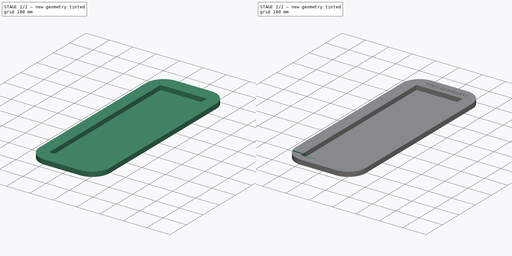
[diagram: build sequence overview — one tinted view per stage of 2, left to right]
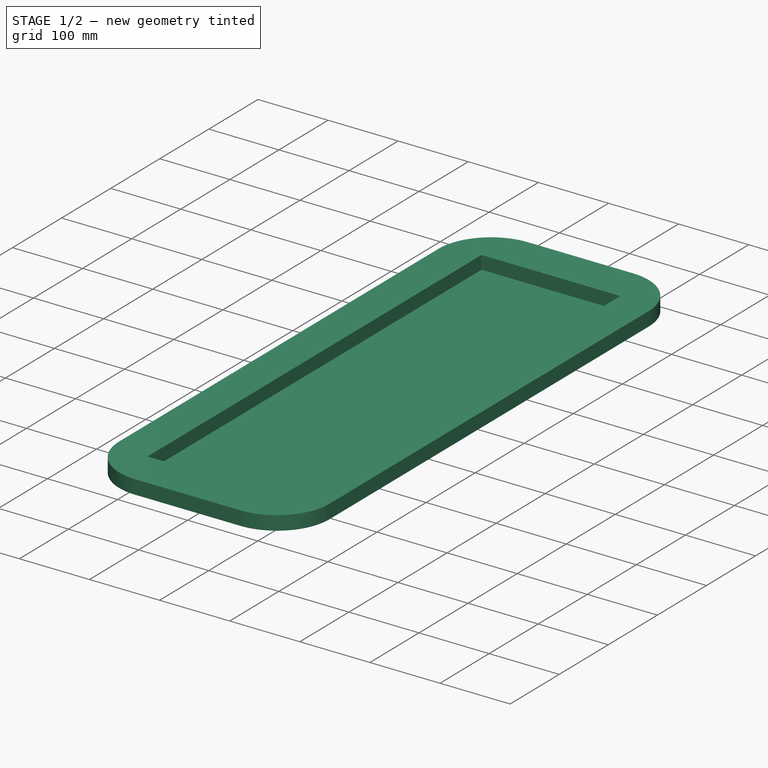
[diagram: stage 1 of 2 — iso view after this stage's code; geometry added in this stage tinted green]
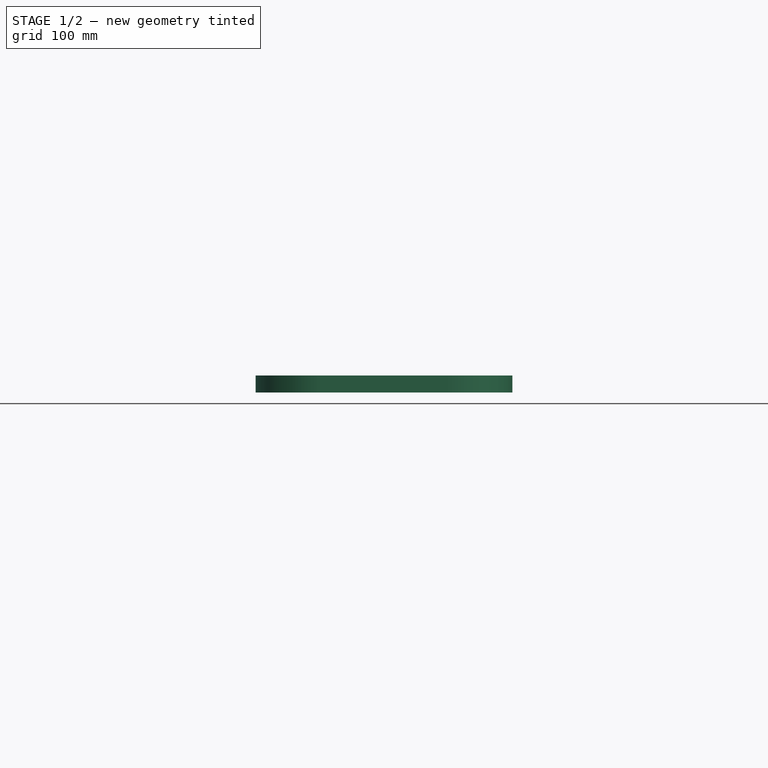
[diagram: stage 1 of 2 — front view after this stage's code; geometry added in this stage tinted green]
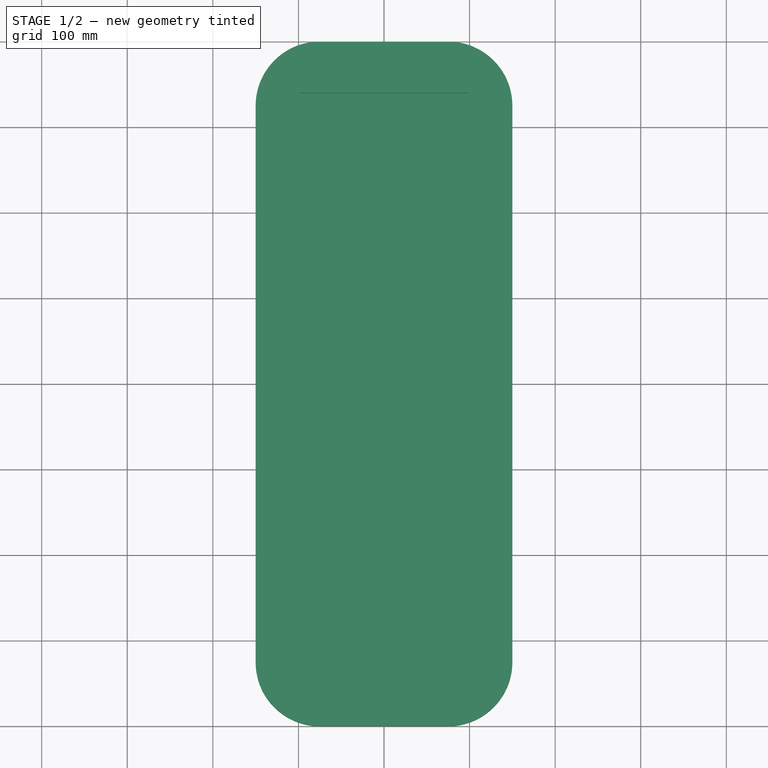
[diagram: stage 1 of 2 — top view after this stage's code; geometry added in this stage tinted green]
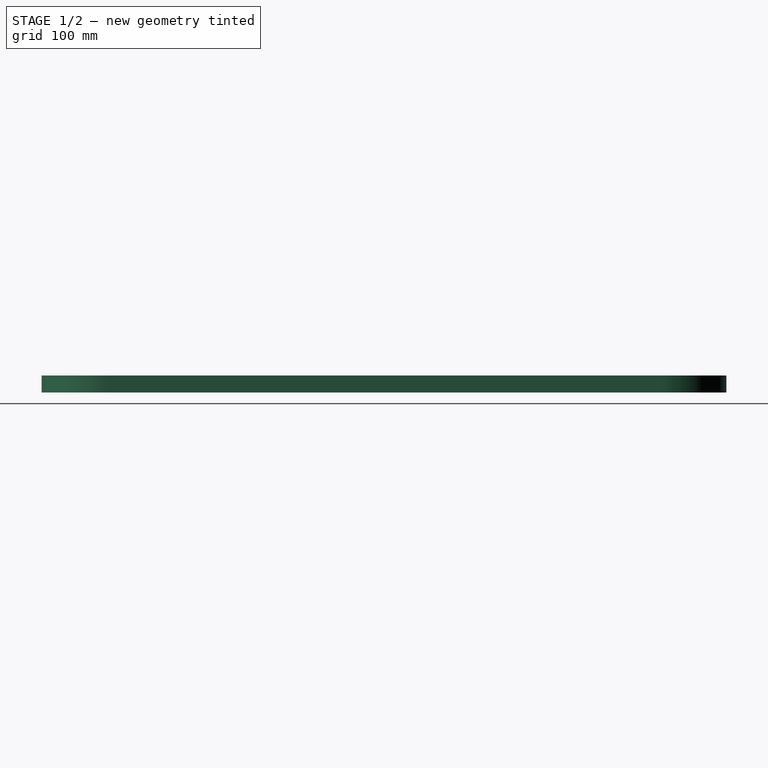
[diagram: stage 1 of 2 — right view after this stage's code; geometry added in this stage tinted green]
FCSTD DOCUMENT  (FreeCAD 1.0R39319 (Git))
Label: Case
License: All rights reserved
LicenseURL: https://en.wikipedia.org/wiki/All_rights_reserved
objects: Sketcher::SketchObject×4, PartDesign::Pocket×3, PartDesign::Pad×1, Part::Part2DObjectPython×1, PartDesign::Body×1
note: 22 computed .brp shape members not serialized (recipe doc carries the construction recipe); baked Part::Feature solids carry a one-line shape summary decoded from their .brp

FEATURE [Sketcher::SketchObject] Sketch
  ArcFitTolerance = 1e-06
  AttachmentSupport = -> [XY_Plane]
  FullyConstrained = false
  MakeInternals = false
  MapMode = 5
  sketch-geometry (22):
    g0: GeomPoint [constr] X=-150 Y=500 Z=0
    g1: GeomPoint [constr] X=150 Y=-400 Z=0
    g2: LineSegment [constr] StartX=-150 StartY=263.083 StartZ=0 EndX=-150 EndY=-263.083 EndZ=0
    g3: LineSegment [constr] StartX=-13.0829 StartY=-400 StartZ=0 EndX=13.0829 EndY=-400 EndZ=0
    g4: LineSegment [constr] StartX=150 StartY=-263.083 StartZ=0 EndX=150 EndY=263.083 EndZ=0
    g5: LineSegment [constr] StartX=13.0829 StartY=400 StartZ=0 EndX=-13.0829 EndY=400 EndZ=0
    g6: ArcOfCircle [constr] CenterX=-13.0829 CenterY=263.083 CenterZ=0 NormalX=0 NormalY=0 NormalZ=1 AngleXU=0 Radius=136.917 StartAngle=1.5708 EndAngle=3.14159
    g7: ArcOfCircle [constr] CenterX=-13.0829 CenterY=-263.083 CenterZ=0 NormalX=0 NormalY=0 NormalZ=1 AngleXU=0 Radius=136.917 StartAngle=3.14159 EndAngle=4.71239
    g8: ArcOfCircle [constr] CenterX=13.0829 CenterY=-263.083 CenterZ=0 NormalX=0 NormalY=0 NormalZ=1 AngleXU=0 Radius=136.917 StartAngle=4.71239 EndAngle=6.28319
    g9: ArcOfCircle [constr] CenterX=13.0829 CenterY=263.083 CenterZ=0 NormalX=0 NormalY=0 NormalZ=1 AngleXU=0 Radius=136.917 StartAngle=0 EndAngle=1.5708
    g10: GeomPoint [constr] X=-150 Y=400 Z=0
    g11: GeomPoint [constr] X=150 Y=-400 Z=0
    g12: LineSegment StartX=-150 StartY=325 StartZ=0 EndX=-150 EndY=-325 EndZ=0
    g13: LineSegment StartX=-75 StartY=-400 StartZ=0 EndX=75 EndY=-400 EndZ=0
    g14: LineSegment StartX=150 StartY=-325 StartZ=0 EndX=150 EndY=325 EndZ=0
    g15: LineSegment StartX=75 StartY=400 StartZ=0 EndX=-75 EndY=400 EndZ=0
    g16: ArcOfCircle CenterX=-75 CenterY=325 CenterZ=0 NormalX=0 NormalY=0 NormalZ=1 AngleXU=0 Radius=75 StartAngle=1.5708 EndAngle=3.14159
    g17: ArcOfCircle CenterX=-75 CenterY=-325 CenterZ=0 NormalX=0 NormalY=0 NormalZ=1 AngleXU=0 Radius=75 StartAngle=3.14159 EndAngle=4.71239
    g18: ArcOfCircle CenterX=75 CenterY=-325 CenterZ=0 NormalX=0 NormalY=0 NormalZ=1 AngleXU=0 Radius=75 StartAngle=4.71239 EndAngle=6.28319
    g19: ArcOfCircle CenterX=75 CenterY=325 CenterZ=0 NormalX=0 NormalY=0 NormalZ=1 AngleXU=0 Radius=75 StartAngle=0 EndAngle=1.5708
    g20: GeomPoint [constr] X=-150 Y=400 Z=0
    g21: GeomPoint [constr] X=150 Y=-400 Z=0
  constraints (46):
    c: Tangent(g2,g6) = -1.5708
    c: Tangent(g2,g7) = -1.5708
    c: Tangent(g3,g7) = -1.5708
    c: Tangent(g3,g8) = -1.5708
    c: Tangent(g4,g8) = -1.5708
    c: Tangent(g4,g9) = -1.5708
    c: Tangent(g5,g9) = -1.5708
    c: Tangent(g5,g6) = -1.5708
    c: Vertical(g2)
    c: Vertical(g4)
    c: Horizontal(g3)
    c: Horizontal(g5)
    c: Equal(g6,g7)
    c: Equal(g7,g8)
    c: Equal(g8,g9)
    c: PointOnObject(g10,g2)
    c: PointOnObject(g10,g5)
    c: PointOnObject(g11,g3)
    c: PointOnObject(g11,g4)
    c: Coincident(g11,g1)
    c: Tangent(g12,g16) = -1.5708
    c: Tangent(g12,g17) = -1.5708
    c: Tangent(g13,g17) = -1.5708
    c: Tangent(g13,g18) = -1.5708
    c: Tangent(g14,g18) = -1.5708
    c: Tangent(g14,g19) = -1.5708
    c: Tangent(g15,g19) = -1.5708
    c: Tangent(g15,g16) = -1.5708
    c: Vertical(g12)
    c: Vertical(g14)
    c: Horizontal(g13)
    c: Horizontal(g15)
    c: Equal(g16,g17)
    c: Equal(g17,g18)
    c: Equal(g18,g19)
    c: PointOnObject(g20,g12)
    c: PointOnObject(g20,g15)
    c: PointOnObject(g21,g13)
    c: PointOnObject(g21,g14)
    c: Coincident(g20,g10)
    c: Coincident(g21,g1)
    c: Distance(g-2,g12) = 150
    c: Distance(g14,g-2) = 150
    c: Distance(g-1,g15) = 400
    c: Distance(g-1,g13) = 400
    c: DistanceX(g15,g15) = 150
FEATURE [PartDesign::Pad] Pad
  Direction = (0,0,1)
  Length = 20
  Length2 = 10
  Profile = -> Sketch
  ReferenceAxis = -> Sketch [N_Axis]
  Refine = true
  Suppressed = false
  Type = 0
  UseCustomVector = true
FEATURE [Sketcher::SketchObject] Sketch003
  ArcFitTolerance = 1e-06
  AttachmentSupport = -> [Pad]
  FullyConstrained = true
  MakeInternals = false
  MapMode = 5
  Placement = pos=(0,0,20) rot=(0,0,1;0rad)
  sketch-geometry (5):
    g0: LineSegment StartX=-99 StartY=-340 StartZ=0 EndX=99 EndY=-340 EndZ=0
    g1: LineSegment StartX=99 StartY=-340 StartZ=0 EndX=99 EndY=340 EndZ=0
    g2: LineSegment StartX=99 StartY=340 StartZ=0 EndX=-99 EndY=340 EndZ=0
    g3: LineSegment StartX=-99 StartY=340 StartZ=0 EndX=-99 EndY=-340 EndZ=0
    g4: GeomPoint [constr] X=0 Y=0 Z=0
  constraints (12):
    c: Coincident(g0,g1)
    c: Coincident(g1,g2)
    c: Coincident(g2,g3)
    c: Coincident(g3,g0)
    c: Horizontal(g0)
    c: Horizontal(g2)
    c: Vertical(g1)
    c: Vertical(g3)
    c: Symmetric(g2,g0,g4)
    c: Coincident(g4,g-1)
    c: Distance(g0,g2) = 680
    c: Distance(g1,g-2) = 99
FEATURE [PartDesign::Pocket] Pocket
  BaseFeature = -> Pad
  Direction = (0,0,-1)
  Length = 19
  Length2 = 5
  Profile = -> Sketch003
  ReferenceAxis = -> Sketch003 [N_Axis]
  Refine = true
  Suppressed = false
  Type = 0
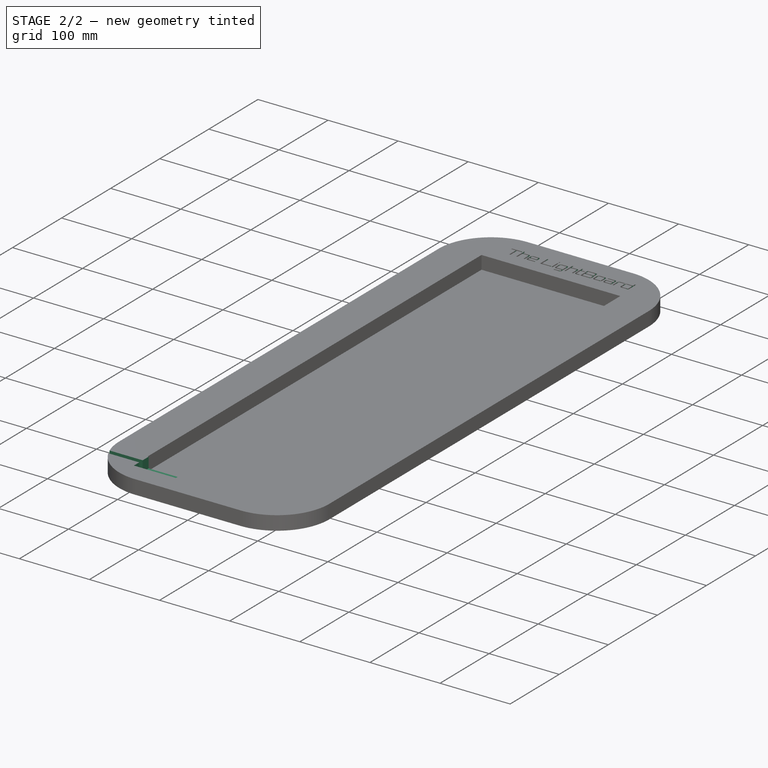
[diagram: stage 2 of 2 — iso view after this stage's code; geometry added in this stage tinted green]
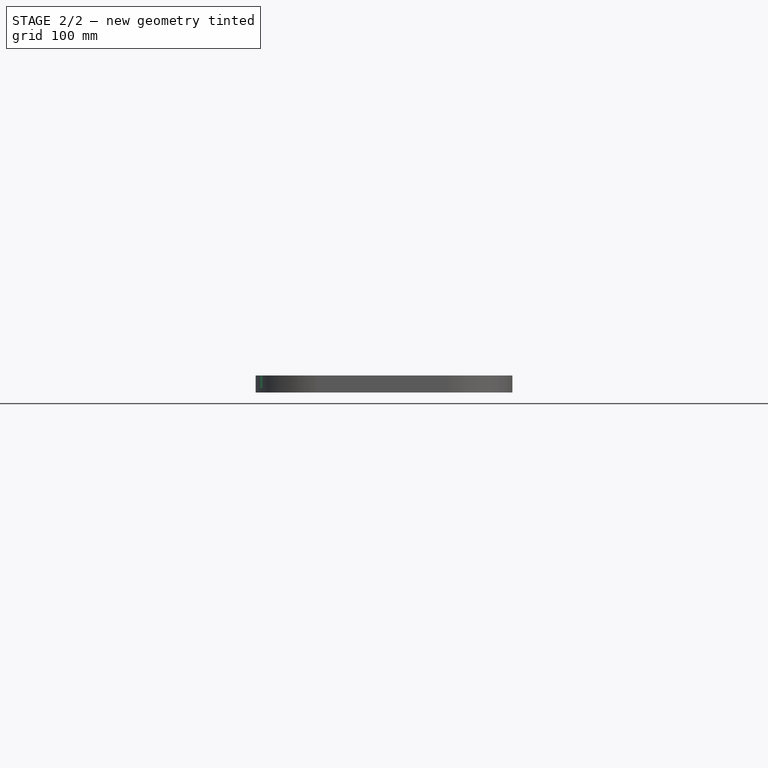
[diagram: stage 2 of 2 — front view after this stage's code; geometry added in this stage tinted green]
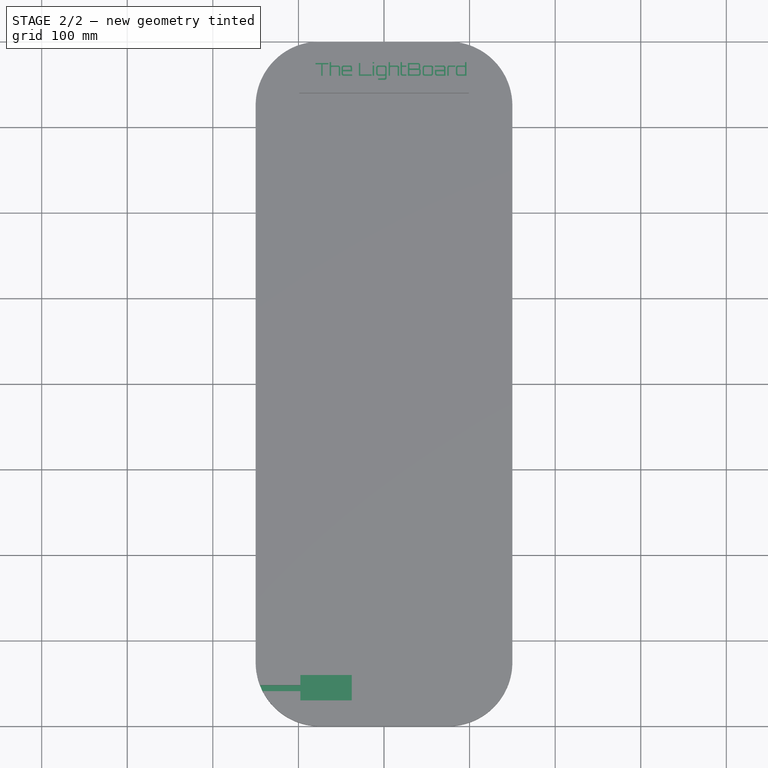
[diagram: stage 2 of 2 — top view after this stage's code; geometry added in this stage tinted green]
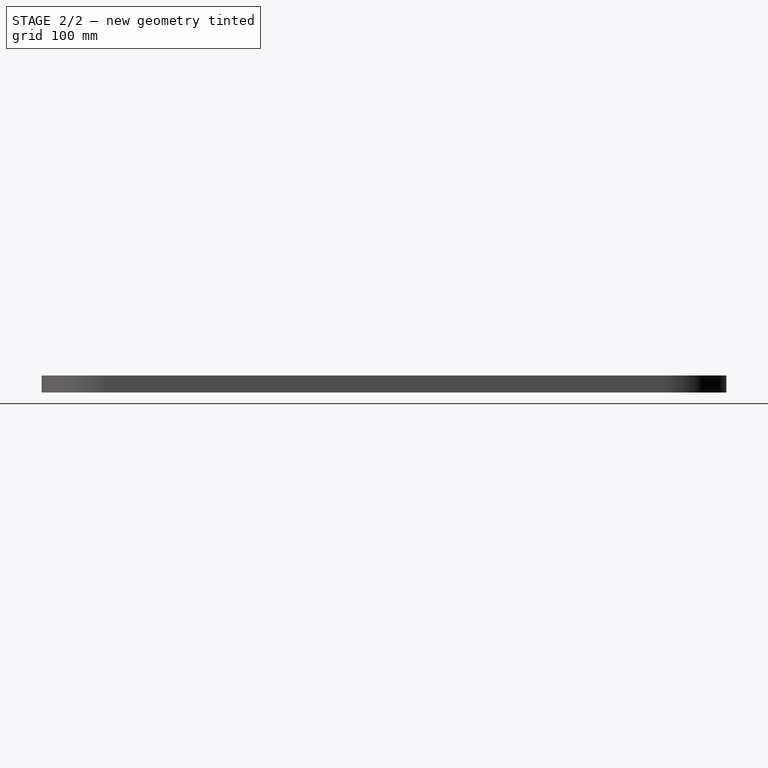
[diagram: stage 2 of 2 — right view after this stage's code; geometry added in this stage tinted green]
FEATURE [Part::Part2DObjectPython] ShapeString  # Draft 2D object (typed FeaturePython)
  AttachmentSupport = -> [Pocket]
  FontFile = <userpath>/Documents/work-sign/CAD/Orbitron-VariableFont_wght.ttf
  Fuse = false
  Justification = 6
  JustificationReference = 0
  KeepLeftMargin = false
  MakeFace = true
  ObliqueAngle = 0
  Placement = pos=(-80,360,20) rot=(0,0,1;0rad)
  ScaleToSize = true
  Size = 15
  String = The LightBoard
  Tracking = 0
FEATURE [Sketcher::SketchObject] Sketch004
  ArcFitTolerance = 1e-06
  FullyConstrained = false
  MakeInternals = false
  Placement = pos=(0,0,20) rot=(0,0,1;0rad)
  sketch-geometry (256):
    g0: LineSegment StartX=-73.3328 StartY=360 StartZ=0 EndX=-73.3328 EndY=373.313 EndZ=0
    g1: LineSegment StartX=-71.6455 StartY=360 StartZ=0 EndX=-73.3328 EndY=360 EndZ=0
    g2: LineSegment StartX=-71.6455 StartY=373.313 StartZ=0 EndX=-71.6455 EndY=360 EndZ=0
    g3: LineSegment StartX=-64.9993 StartY=373.313 StartZ=0 EndX=-71.6455 EndY=373.313 EndZ=0
    g4: LineSegment StartX=-64.9993 StartY=375 StartZ=0 EndX=-64.9993 EndY=373.313 EndZ=0
    g5: LineSegment StartX=-80 StartY=375 StartZ=0 EndX=-64.9993 EndY=375 EndZ=0
    g6: LineSegment StartX=-80 StartY=373.313 StartZ=0 EndX=-80 EndY=375 EndZ=0
    g7: LineSegment StartX=-73.3328 StartY=373.313 StartZ=0 EndX=-80 EndY=373.313 EndZ=0
    g8: LineSegment StartX=-63.4924 StartY=360 StartZ=0 EndX=-63.4924 EndY=376.042 EndZ=0
    g9: LineSegment StartX=-61.7841 StartY=360 StartZ=0 EndX=-63.4924 EndY=360 EndZ=0
    g10: LineSegment StartX=-61.7841 StartY=369.562 StartZ=0 EndX=-61.7841 EndY=360 EndZ=0
    g11: BSplineCurve PolesCount=3 KnotsCount=2 Degree=2 IsPeriodic=0
    g12: BSplineCurve PolesCount=3 KnotsCount=2 Degree=2 IsPeriodic=0
    g13: LineSegment StartX=-53.7008 StartY=370.375 StartZ=0 EndX=-60.9506 EndY=370.375 EndZ=0
    g14: BSplineCurve PolesCount=3 KnotsCount=2 Degree=2 IsPeriodic=0
    g15: BSplineCurve PolesCount=3 KnotsCount=2 Degree=2 IsPeriodic=0
    g16: LineSegment StartX=-52.8884 StartY=360 StartZ=0 EndX=-52.8884 EndY=369.562 EndZ=0
    g17: LineSegment StartX=-51.18 StartY=360 StartZ=0 EndX=-52.8884 EndY=360 EndZ=0
    g18: LineSegment StartX=-51.18 StartY=369.562 StartZ=0 EndX=-51.18 EndY=360 EndZ=0
    g19: BSplineCurve PolesCount=3 KnotsCount=2 Degree=2 IsPeriodic=0
    g20: BSplineCurve PolesCount=3 KnotsCount=2 Degree=2 IsPeriodic=0
    g21: BSplineCurve PolesCount=3 KnotsCount=2 Degree=2 IsPeriodic=0
    g22: LineSegment StartX=-61.7841 StartY=372.084 StartZ=0 EndX=-53.7008 EndY=372.084 EndZ=0
    g23: LineSegment StartX=-61.7841 StartY=376.042 StartZ=0 EndX=-61.7841 EndY=372.084 EndZ=0
    g24: LineSegment StartX=-63.4924 StartY=376.042 StartZ=0 EndX=-61.7841 EndY=376.042 EndZ=0
    g25: BSplineCurve PolesCount=3 KnotsCount=2 Degree=2 IsPeriodic=0
    g26: LineSegment StartX=-37.3099 StartY=360 StartZ=0 EndX=-47.1015 EndY=360 EndZ=0
    g27: LineSegment StartX=-37.3099 StartY=361.708 StartZ=0 EndX=-37.3099 EndY=360 EndZ=0
    g28: LineSegment StartX=-47.1015 StartY=361.708 StartZ=0 EndX=-37.3099 EndY=361.708 EndZ=0
    g29: BSplineCurve PolesCount=3 KnotsCount=2 Degree=2 IsPeriodic=0
    g30: BSplineCurve PolesCount=3 KnotsCount=2 Degree=2 IsPeriodic=0
    g31: LineSegment StartX=-47.9139 StartY=365.187 StartZ=0 EndX=-47.9139 EndY=362.521 EndZ=0
    g32: LineSegment StartX=-37.3099 StartY=365.187 StartZ=0 EndX=-47.9139 EndY=365.187 EndZ=0
    g33: LineSegment StartX=-37.3099 StartY=369.562 StartZ=0 EndX=-37.3099 EndY=365.187 EndZ=0
    g34: BSplineCurve PolesCount=3 KnotsCount=2 Degree=2 IsPeriodic=0
    g35: BSplineCurve PolesCount=3 KnotsCount=2 Degree=2 IsPeriodic=0
    g36: BSplineCurve PolesCount=3 KnotsCount=2 Degree=2 IsPeriodic=0
    g37: LineSegment StartX=-47.1015 StartY=372.084 StartZ=0 EndX=-39.8517 EndY=372.084 EndZ=0
    g38: BSplineCurve PolesCount=3 KnotsCount=2 Degree=2 IsPeriodic=0
    g39: BSplineCurve PolesCount=3 KnotsCount=2 Degree=2 IsPeriodic=0
    g40: BSplineCurve PolesCount=3 KnotsCount=2 Degree=2 IsPeriodic=0
    g41: LineSegment StartX=-49.6223 StartY=362.521 StartZ=0 EndX=-49.6223 EndY=369.562 EndZ=0
    g42: BSplineCurve PolesCount=3 KnotsCount=2 Degree=2 IsPeriodic=0
    g43: BSplineCurve PolesCount=3 KnotsCount=2 Degree=2 IsPeriodic=0
    g44: LineSegment StartX=-47.9139 StartY=366.896 StartZ=0 EndX=-39.0392 EndY=366.896 EndZ=0
    g45: LineSegment StartX=-47.9139 StartY=369.562 StartZ=0 EndX=-47.9139 EndY=366.896 EndZ=0
    g46: BSplineCurve PolesCount=3 KnotsCount=2 Degree=2 IsPeriodic=0
    g47: BSplineCurve PolesCount=3 KnotsCount=2 Degree=2 IsPeriodic=0
    g48: LineSegment StartX=-39.8517 StartY=370.375 StartZ=0 EndX=-47.1015 EndY=370.375 EndZ=0
    g49: BSplineCurve PolesCount=3 KnotsCount=2 Degree=2 IsPeriodic=0
    g50: BSplineCurve PolesCount=3 KnotsCount=2 Degree=2 IsPeriodic=0
    g51: LineSegment StartX=-39.0392 StartY=366.896 StartZ=0 EndX=-39.0392 EndY=369.562 EndZ=0
    g52: LineSegment StartX=-29.4016 StartY=360 StartZ=0 EndX=-29.4016 EndY=375.021 EndZ=0
    g53: LineSegment StartX=-14.4016 StartY=360 StartZ=0 EndX=-29.4016 EndY=360 EndZ=0
    g54: LineSegment StartX=-14.4016 StartY=361.687 StartZ=0 EndX=-14.4016 EndY=360 EndZ=0
    g55: LineSegment StartX=-27.7143 StartY=361.687 StartZ=0 EndX=-14.4016 EndY=361.687 EndZ=0
    g56: LineSegment StartX=-27.7143 StartY=375.021 StartZ=0 EndX=-27.7143 EndY=361.687 EndZ=0
    g57: LineSegment StartX=-29.4016 StartY=375.021 StartZ=0 EndX=-27.7143 EndY=375.021 EndZ=0
    g58: LineSegment StartX=-13.2731 StartY=360 StartZ=0 EndX=-13.2731 EndY=372.084 EndZ=0
    g59: LineSegment StartX=-11.5648 StartY=360 StartZ=0 EndX=-13.2731 EndY=360 EndZ=0
    g60: LineSegment StartX=-11.5648 StartY=372.084 StartZ=0 EndX=-11.5648 EndY=360 EndZ=0
    g61: LineSegment StartX=-13.2731 StartY=372.084 StartZ=0 EndX=-11.5648 EndY=372.084 EndZ=0
    g62: LineSegment StartX=-13.2731 StartY=374.333 StartZ=0 EndX=-13.2731 EndY=376.042 EndZ=0
    g63: LineSegment StartX=-11.5648 StartY=374.333 StartZ=0 EndX=-13.2731 EndY=374.333 EndZ=0
    g64: LineSegment StartX=-11.5648 StartY=376.042 StartZ=0 EndX=-11.5648 EndY=374.333 EndZ=0
    g65: LineSegment StartX=-13.2731 StartY=376.042 StartZ=0 EndX=-11.5648 EndY=376.042 EndZ=0
    g66: LineSegment StartX=-6.93214 StartY=355.229 StartZ=0 EndX=-6.93214 EndY=356.958 EndZ=0
    g67: LineSegment StartX=0.609232 StartY=355.229 StartZ=0 EndX=-6.93214 EndY=355.229 EndZ=0
    g68: BSplineCurve PolesCount=3 KnotsCount=2 Degree=2 IsPeriodic=0
    g69: BSplineCurve PolesCount=3 KnotsCount=2 Degree=2 IsPeriodic=0
    g70: BSplineCurve PolesCount=3 KnotsCount=2 Degree=2 IsPeriodic=0
    g71: LineSegment StartX=3.13003 StartY=369.562 StartZ=0 EndX=3.13003 EndY=357.771 EndZ=0
    g72: BSplineCurve PolesCount=3 KnotsCount=2 Degree=2 IsPeriodic=0
    g73: BSplineCurve PolesCount=3 KnotsCount=2 Degree=2 IsPeriodic=0
    g74: BSplineCurve PolesCount=3 KnotsCount=2 Degree=2 IsPeriodic=0
    g75: LineSegment StartX=-6.64052 StartY=372.084 StartZ=0 EndX=0.609232 EndY=372.084 EndZ=0
    g76: BSplineCurve PolesCount=3 KnotsCount=2 Degree=2 IsPeriodic=0
    g77: BSplineCurve PolesCount=3 KnotsCount=2 Degree=2 IsPeriodic=0
    g78: BSplineCurve PolesCount=3 KnotsCount=2 Degree=2 IsPeriodic=0
    g79: LineSegment StartX=-9.16132 StartY=362.521 StartZ=0 EndX=-9.16132 EndY=369.562 EndZ=0
    g80: BSplineCurve PolesCount=3 KnotsCount=2 Degree=2 IsPeriodic=0
    g81: BSplineCurve PolesCount=3 KnotsCount=2 Degree=2 IsPeriodic=0
    g82: BSplineCurve PolesCount=3 KnotsCount=2 Degree=2 IsPeriodic=0
    g83: LineSegment StartX=1.42169 StartY=360 StartZ=0 EndX=-6.64052 EndY=360 EndZ=0
    g84: LineSegment StartX=1.42169 StartY=357.771 StartZ=0 EndX=1.42169 EndY=360 EndZ=0
    g85: BSplineCurve PolesCount=3 KnotsCount=2 Degree=2 IsPeriodic=0
    g86: BSplineCurve PolesCount=3 KnotsCount=2 Degree=2 IsPeriodic=0
    g87: LineSegment StartX=-6.93214 StartY=356.958 StartZ=0 EndX=0.609232 EndY=356.958 EndZ=0
    g88: LineSegment StartX=-6.64052 StartY=361.708 StartZ=0 EndX=0.609232 EndY=361.708 EndZ=0
    g89: BSplineCurve PolesCount=3 KnotsCount=2 Degree=2 IsPeriodic=0
    g90: BSplineCurve PolesCount=3 KnotsCount=2 Degree=2 IsPeriodic=0
    g91: LineSegment StartX=-7.45298 StartY=369.562 StartZ=0 EndX=-7.45298 EndY=362.521 EndZ=0
    g92: BSplineCurve PolesCount=3 KnotsCount=2 Degree=2 IsPeriodic=0
    g93: BSplineCurve PolesCount=3 KnotsCount=2 Degree=2 IsPeriodic=0
    g94: LineSegment StartX=0.609232 StartY=370.375 StartZ=0 EndX=-6.64052 EndY=370.375 EndZ=0
    g95: BSplineCurve PolesCount=3 KnotsCount=2 Degree=2 IsPeriodic=0
    g96: BSplineCurve PolesCount=3 KnotsCount=2 Degree=2 IsPeriodic=0
    g97: LineSegment StartX=1.42169 StartY=362.521 StartZ=0 EndX=1.42169 EndY=369.562 EndZ=0
    g98: BSplineCurve PolesCount=3 KnotsCount=2 Degree=2 IsPeriodic=0
    g99: BSplineCurve PolesCount=3 KnotsCount=2 Degree=2 IsPeriodic=0
    g100: LineSegment StartX=5.34565 StartY=360 StartZ=0 EndX=5.34565 EndY=376.042 EndZ=0
    g101: LineSegment StartX=7.05398 StartY=360 StartZ=0 EndX=5.34565 EndY=360 EndZ=0
    g102: LineSegment StartX=7.05398 StartY=369.562 StartZ=0 EndX=7.05398 EndY=360 EndZ=0
    g103: BSplineCurve PolesCount=3 KnotsCount=2 Degree=2 IsPeriodic=0
    g104: BSplineCurve PolesCount=3 KnotsCount=2 Degree=2 IsPeriodic=0
    g105: LineSegment StartX=15.1372 StartY=370.375 StartZ=0 EndX=7.88747 EndY=370.375 EndZ=0
    g106: BSplineCurve PolesCount=3 KnotsCount=2 Degree=2 IsPeriodic=0
    g107: BSplineCurve PolesCount=3 KnotsCount=2 Degree=2 IsPeriodic=0
    g108: LineSegment StartX=15.9497 StartY=360 StartZ=0 EndX=15.9497 EndY=369.562 EndZ=0
    g109: LineSegment StartX=17.658 StartY=360 StartZ=0 EndX=15.9497 EndY=360 EndZ=0
    g110: LineSegment StartX=17.658 StartY=369.562 StartZ=0 EndX=17.658 EndY=360 EndZ=0
    g111: BSplineCurve PolesCount=3 KnotsCount=2 Degree=2 IsPeriodic=0
    g112: BSplineCurve PolesCount=3 KnotsCount=2 Degree=2 IsPeriodic=0
    g113: BSplineCurve PolesCount=3 KnotsCount=2 Degree=2 IsPeriodic=0
    g114: LineSegment StartX=7.05398 StartY=372.084 StartZ=0 EndX=15.1372 EndY=372.084 EndZ=0
    g115: LineSegment StartX=7.05398 StartY=376.042 StartZ=0 EndX=7.05398 EndY=372.084 EndZ=0
    g116: LineSegment StartX=5.34565 StartY=376.042 StartZ=0 EndX=7.05398 EndY=376.042 EndZ=0
    g117: BSplineCurve PolesCount=3 KnotsCount=2 Degree=2 IsPeriodic=0
    g118: LineSegment StartX=26.195 StartY=360 StartZ=0 EndX=21.778 EndY=360 EndZ=0
    g119: LineSegment StartX=26.195 StartY=361.708 StartZ=0 EndX=26.195 EndY=360 EndZ=0
    g120: LineSegment StartX=21.778 StartY=361.708 StartZ=0 EndX=26.195 EndY=361.708 EndZ=0
    g121: BSplineCurve PolesCount=3 KnotsCount=2 Degree=2 IsPeriodic=0
    g122: BSplineCurve PolesCount=3 KnotsCount=2 Degree=2 IsPeriodic=0
    g123: LineSegment StartX=20.9655 StartY=370.375 StartZ=0 EndX=20.9655 EndY=362.521 EndZ=0
    g124: LineSegment StartX=26.195 StartY=370.375 StartZ=0 EndX=20.9655 EndY=370.375 EndZ=0
    g125: LineSegment StartX=26.195 StartY=372.084 StartZ=0 EndX=26.195 EndY=370.375 EndZ=0
    g126: LineSegment StartX=20.9655 StartY=372.084 StartZ=0 EndX=26.195 EndY=372.084 EndZ=0
    g127: LineSegment StartX=20.9655 StartY=376.042 StartZ=0 EndX=20.9655 EndY=372.084 EndZ=0
    g128: LineSegment StartX=19.2572 StartY=376.042 StartZ=0 EndX=20.9655 EndY=376.042 EndZ=0
    g129: LineSegment StartX=19.2572 StartY=362.521 StartZ=0 EndX=19.2572 EndY=376.042 EndZ=0
    g130: BSplineCurve PolesCount=3 KnotsCount=2 Degree=2 IsPeriodic=0
    g131: BSplineCurve PolesCount=3 KnotsCount=2 Degree=2 IsPeriodic=0
    g132: LineSegment StartX=27.9325 StartY=360 StartZ=0 EndX=27.9325 EndY=375 EndZ=0
    g133: LineSegment StartX=40.4327 StartY=360 StartZ=0 EndX=27.9325 EndY=360 EndZ=0
    g134: BSplineCurve PolesCount=3 KnotsCount=2 Degree=2 IsPeriodic=0
    g135: BSplineCurve PolesCount=3 KnotsCount=2 Degree=2 IsPeriodic=0
    g136: BSplineCurve PolesCount=3 KnotsCount=2 Degree=2 IsPeriodic=0
    g137: LineSegment StartX=42.9331 StartY=366 StartZ=0 EndX=42.9331 EndY=362.5 EndZ=0
    g138: BSplineCurve PolesCount=3 KnotsCount=2 Degree=2 IsPeriodic=0
    g139: BSplineCurve PolesCount=3 KnotsCount=2 Degree=2 IsPeriodic=0
    g140: BSplineCurve PolesCount=3 KnotsCount=2 Degree=2 IsPeriodic=0
    g141: BSplineCurve PolesCount=3 KnotsCount=2 Degree=2 IsPeriodic=0
    g142: LineSegment StartX=42.2875 StartY=372.5 StartZ=0 EndX=42.2875 EndY=369.313 EndZ=0
    g143: BSplineCurve PolesCount=3 KnotsCount=2 Degree=2 IsPeriodic=0
    g144: BSplineCurve PolesCount=3 KnotsCount=2 Degree=2 IsPeriodic=0
    g145: BSplineCurve PolesCount=3 KnotsCount=2 Degree=2 IsPeriodic=0
    g146: LineSegment StartX=27.9325 StartY=375 StartZ=0 EndX=39.7871 EndY=375 EndZ=0
    g147: LineSegment StartX=30.4329 StartY=361.687 StartZ=0 EndX=40.4327 EndY=361.687 EndZ=0
    g148: BSplineCurve PolesCount=3 KnotsCount=2 Degree=2 IsPeriodic=0
    g149: BSplineCurve PolesCount=3 KnotsCount=2 Degree=2 IsPeriodic=0
    g150: LineSegment StartX=29.6204 StartY=366 StartZ=0 EndX=29.6204 EndY=362.5 EndZ=0
    g151: BSplineCurve PolesCount=3 KnotsCount=2 Degree=2 IsPeriodic=0
    g152: BSplineCurve PolesCount=3 KnotsCount=2 Degree=2 IsPeriodic=0
    g153: LineSegment StartX=40.4327 StartY=366.812 StartZ=0 EndX=30.4329 EndY=366.812 EndZ=0
    g154: BSplineCurve PolesCount=3 KnotsCount=2 Degree=2 IsPeriodic=0
    g155: BSplineCurve PolesCount=3 KnotsCount=2 Degree=2 IsPeriodic=0
    g156: LineSegment StartX=41.2458 StartY=362.5 StartZ=0 EndX=41.2458 EndY=366 EndZ=0
    g157: BSplineCurve PolesCount=3 KnotsCount=2 Degree=2 IsPeriodic=0
    g158: BSplineCurve PolesCount=3 KnotsCount=2 Degree=2 IsPeriodic=0
    g159: LineSegment StartX=30.4329 StartY=368.5 StartZ=0 EndX=39.7871 EndY=368.5 EndZ=0
    g160: BSplineCurve PolesCount=3 KnotsCount=2 Degree=2 IsPeriodic=0
    g161: BSplineCurve PolesCount=3 KnotsCount=2 Degree=2 IsPeriodic=0
    g162: LineSegment StartX=29.6204 StartY=372.5 StartZ=0 EndX=29.6204 EndY=369.313 EndZ=0
    g163: BSplineCurve PolesCount=3 KnotsCount=2 Degree=2 IsPeriodic=0
    g164: BSplineCurve PolesCount=3 KnotsCount=2 Degree=2 IsPeriodic=0
    g165: LineSegment StartX=39.7871 StartY=373.313 StartZ=0 EndX=30.4329 EndY=373.313 EndZ=0
    g166: BSplineCurve PolesCount=3 KnotsCount=2 Degree=2 IsPeriodic=0
    g167: BSplineCurve PolesCount=3 KnotsCount=2 Degree=2 IsPeriodic=0
    g168: LineSegment StartX=40.5792 StartY=369.313 StartZ=0 EndX=40.5792 EndY=372.5 EndZ=0
    g169: BSplineCurve PolesCount=3 KnotsCount=2 Degree=2 IsPeriodic=0
    g170: BSplineCurve PolesCount=3 KnotsCount=2 Degree=2 IsPeriodic=0
    g171: BSplineCurve PolesCount=3 KnotsCount=2 Degree=2 IsPeriodic=0
    g172: LineSegment StartX=54.8549 StartY=360 StartZ=0 EndX=47.6051 EndY=360 EndZ=0
    g173: BSplineCurve PolesCount=3 KnotsCount=2 Degree=2 IsPeriodic=0
    g174: BSplineCurve PolesCount=3 KnotsCount=2 Degree=2 IsPeriodic=0
    g175: BSplineCurve PolesCount=3 KnotsCount=2 Degree=2 IsPeriodic=0
    g176: LineSegment StartX=57.3967 StartY=369.562 StartZ=0 EndX=57.3967 EndY=362.521 EndZ=0
    g177: BSplineCurve PolesCount=3 KnotsCount=2 Degree=2 IsPeriodic=0
    g178: BSplineCurve PolesCount=3 KnotsCount=2 Degree=2 IsPeriodic=0
    g179: BSplineCurve PolesCount=3 KnotsCount=2 Degree=2 IsPeriodic=0
    g180: LineSegment StartX=47.6051 StartY=372.084 StartZ=0 EndX=54.8549 EndY=372.084 EndZ=0
    g181: BSplineCurve PolesCount=3 KnotsCount=2 Degree=2 IsPeriodic=0
    g182: BSplineCurve PolesCount=3 KnotsCount=2 Degree=2 IsPeriodic=0
    g183: BSplineCurve PolesCount=3 KnotsCount=2 Degree=2 IsPeriodic=0
    g184: LineSegment StartX=45.0843 StartY=362.521 StartZ=0 EndX=45.0843 EndY=369.562 EndZ=0
    g185: BSplineCurve PolesCount=3 KnotsCount=2 Degree=2 IsPeriodic=0
    g186: BSplineCurve PolesCount=3 KnotsCount=2 Degree=2 IsPeriodic=0
    g187: LineSegment StartX=47.6051 StartY=361.708 StartZ=0 EndX=54.8549 EndY=361.708 EndZ=0
    g188: BSplineCurve PolesCount=3 KnotsCount=2 Degree=2 IsPeriodic=0
    g189: BSplineCurve PolesCount=3 KnotsCount=2 Degree=2 IsPeriodic=0
    g190: LineSegment StartX=46.7927 StartY=369.562 StartZ=0 EndX=46.7927 EndY=362.521 EndZ=0
    g191: BSplineCurve PolesCount=3 KnotsCount=2 Degree=2 IsPeriodic=0
    g192: BSplineCurve PolesCount=3 KnotsCount=2 Degree=2 IsPeriodic=0
    g193: LineSegment StartX=54.8549 StartY=370.375 StartZ=0 EndX=47.6051 EndY=370.375 EndZ=0
    g194: BSplineCurve PolesCount=3 KnotsCount=2 Degree=2 IsPeriodic=0
    g195: BSplineCurve PolesCount=3 KnotsCount=2 Degree=2 IsPeriodic=0
    g196: LineSegment StartX=55.6673 StartY=362.521 StartZ=0 EndX=55.6673 EndY=369.562 EndZ=0
    g197: BSplineCurve PolesCount=3 KnotsCount=2 Degree=2 IsPeriodic=0
    g198: BSplineCurve PolesCount=3 KnotsCount=2 Degree=2 IsPeriodic=0
    g199: BSplineCurve PolesCount=3 KnotsCount=2 Degree=2 IsPeriodic=0
    g200: LineSegment StartX=71.8277 StartY=360 StartZ=0 EndX=62.0361 EndY=360 EndZ=0
    g201: LineSegment StartX=71.8277 StartY=369.562 StartZ=0 EndX=71.8277 EndY=360 EndZ=0
    g202: BSplineCurve PolesCount=3 KnotsCount=2 Degree=2 IsPeriodic=0
    g203: BSplineCurve PolesCount=3 KnotsCount=2 Degree=2 IsPeriodic=0
    g204: BSplineCurve PolesCount=3 KnotsCount=2 Degree=2 IsPeriodic=0
    g205: LineSegment StartX=59.5146 StartY=372.084 StartZ=0 EndX=69.2859 EndY=372.084 EndZ=0
    g206: LineSegment StartX=59.5146 StartY=370.375 StartZ=0 EndX=59.5146 EndY=372.084 EndZ=0
    g207: LineSegment StartX=69.2859 StartY=370.375 StartZ=0 EndX=59.5146 EndY=370.375 EndZ=0
    g208: BSplineCurve PolesCount=3 KnotsCount=2 Degree=2 IsPeriodic=0
    g209: BSplineCurve PolesCount=3 KnotsCount=2 Degree=2 IsPeriodic=0
    g210: LineSegment StartX=70.0983 StartY=366.896 StartZ=0 EndX=70.0983 EndY=369.562 EndZ=0
    g211: LineSegment StartX=59.5146 StartY=366.896 StartZ=0 EndX=70.0983 EndY=366.896 EndZ=0
    g212: LineSegment StartX=59.5146 StartY=362.521 StartZ=0 EndX=59.5146 EndY=366.896 EndZ=0
    g213: BSplineCurve PolesCount=3 KnotsCount=2 Degree=2 IsPeriodic=0
    g214: BSplineCurve PolesCount=3 KnotsCount=2 Degree=2 IsPeriodic=0
    g215: LineSegment StartX=62.0361 StartY=361.708 StartZ=0 EndX=70.0983 EndY=361.708 EndZ=0
    g216: BSplineCurve PolesCount=3 KnotsCount=2 Degree=2 IsPeriodic=0
    g217: BSplineCurve PolesCount=3 KnotsCount=2 Degree=2 IsPeriodic=0
    g218: LineSegment StartX=61.223 StartY=365.187 StartZ=0 EndX=61.223 EndY=362.521 EndZ=0
    g219: LineSegment StartX=70.0983 StartY=365.187 StartZ=0 EndX=61.223 EndY=365.187 EndZ=0
    g220: LineSegment StartX=70.0983 StartY=361.708 StartZ=0 EndX=70.0983 EndY=365.187 EndZ=0
    g221: LineSegment StartX=73.968 StartY=360 StartZ=0 EndX=73.968 EndY=369.562 EndZ=0
    g222: LineSegment StartX=75.6764 StartY=360 StartZ=0 EndX=73.968 EndY=360 EndZ=0
    g223: LineSegment StartX=75.6764 StartY=369.562 StartZ=0 EndX=75.6764 EndY=360 EndZ=0
    g224: BSplineCurve PolesCount=3 KnotsCount=2 Degree=2 IsPeriodic=0
    g225: BSplineCurve PolesCount=3 KnotsCount=2 Degree=2 IsPeriodic=0
    g226: LineSegment StartX=83.2808 StartY=370.375 StartZ=0 EndX=76.4895 EndY=370.375 EndZ=0
    g227: LineSegment StartX=83.2808 StartY=372.084 StartZ=0 EndX=83.2808 EndY=370.375 EndZ=0
    g228: LineSegment StartX=76.4895 StartY=372.084 StartZ=0 EndX=83.2808 EndY=372.084 EndZ=0
    g229: BSplineCurve PolesCount=3 KnotsCount=2 Degree=2 IsPeriodic=0
    g230: BSplineCurve PolesCount=3 KnotsCount=2 Degree=2 IsPeriodic=0
    g231: BSplineCurve PolesCount=3 KnotsCount=2 Degree=2 IsPeriodic=0
    g232: BSplineCurve PolesCount=3 KnotsCount=2 Degree=2 IsPeriodic=0
    g233: LineSegment StartX=96.3541 StartY=360 StartZ=0 EndX=86.5829 EndY=360 EndZ=0
    g234: LineSegment StartX=96.3541 StartY=376.042 StartZ=0 EndX=96.3541 EndY=360 EndZ=0
    g235: LineSegment StartX=94.6458 StartY=376.042 StartZ=0 EndX=96.3541 EndY=376.042 EndZ=0
    g236: LineSegment StartX=94.6458 StartY=372.084 StartZ=0 EndX=94.6458 EndY=376.042 EndZ=0
    g237: LineSegment StartX=86.5829 StartY=372.084 StartZ=0 EndX=94.6458 EndY=372.084 EndZ=0
    g238: BSplineCurve PolesCount=3 KnotsCount=2 Degree=2 IsPeriodic=0
    g239: BSplineCurve PolesCount=3 KnotsCount=2 Degree=2 IsPeriodic=0
    g240: BSplineCurve PolesCount=3 KnotsCount=2 Degree=2 IsPeriodic=0
    g241: LineSegment StartX=84.0417 StartY=362.521 StartZ=0 EndX=84.0417 EndY=369.562 EndZ=0
    g242: BSplineCurve PolesCount=3 KnotsCount=2 Degree=2 IsPeriodic=0
    g243: BSplineCurve PolesCount=3 KnotsCount=2 Degree=2 IsPeriodic=0
    g244: LineSegment StartX=86.5829 StartY=361.708 StartZ=0 EndX=93.8333 EndY=361.708 EndZ=0
    g245: BSplineCurve PolesCount=3 KnotsCount=2 Degree=2 IsPeriodic=0
    g246: BSplineCurve PolesCount=3 KnotsCount=2 Degree=2 IsPeriodic=0
    g247: LineSegment StartX=85.7704 StartY=369.562 StartZ=0 EndX=85.7704 EndY=362.521 EndZ=0
    g248: BSplineCurve PolesCount=3 KnotsCount=2 Degree=2 IsPeriodic=0
    g249: BSplineCurve PolesCount=3 KnotsCount=2 Degree=2 IsPeriodic=0
    g250: LineSegment StartX=93.8333 StartY=370.375 StartZ=0 EndX=86.5829 EndY=370.375 EndZ=0
    g251: BSplineCurve PolesCount=3 KnotsCount=2 Degree=2 IsPeriodic=0
    g252: BSplineCurve PolesCount=3 KnotsCount=2 Degree=2 IsPeriodic=0
    g253: LineSegment StartX=94.6458 StartY=362.521 StartZ=0 EndX=94.6458 EndY=369.562 EndZ=0
    g254: BSplineCurve PolesCount=3 KnotsCount=2 Degree=2 IsPeriodic=0
    g255: BSplineCurve PolesCount=3 KnotsCount=2 Degree=2 IsPeriodic=0
  constraints (381):
    c: Vertical(g0)
    c: Coincident(g0,g1)
    c: Horizontal(g1)
    c: Coincident(g1,g2)
    c: Vertical(g2)
    c: Coincident(g2,g3)
    c: Horizontal(g3)
    c: Coincident(g3,g4)
    c: Vertical(g4)
    c: Coincident(g4,g5)
    c: Horizontal(g5)
    c: Coincident(g5,g6)
    c: Vertical(g6)
    c: Coincident(g6,g7)
    c: Horizontal(g7)
    c: Coincident(g7,g0)
    c: Vertical(g8)
    c: Coincident(g8,g9)
    c: Horizontal(g9)
    c: Coincident(g9,g10)
    c: Vertical(g10)
    c: Coincident(g10,g11)
    c: Coincident(g11,g12)
    c: Coincident(g12,g13)
    c: Horizontal(g13)
    c: Coincident(g13,g14)
    c: Coincident(g14,g15)
    c: Coincident(g15,g16)
    c: Vertical(g16)
    c: Coincident(g16,g17)
    c: Horizontal(g17)
    c: Coincident(g17,g18)
    c: Vertical(g18)
    c: Coincident(g18,g19)
    c: Coincident(g19,g20)
    c: Coincident(g20,g21)
    c: Coincident(g21,g22)
    c: Horizontal(g22)
    c: Coincident(g22,g23)
    c: Vertical(g23)
    c: Coincident(g23,g24)
    c: Horizontal(g24)
    c: Coincident(g24,g8)
    c: Coincident(g25,g26)
    c: Horizontal(g26)
    c: Coincident(g26,g27)
    c: Vertical(g27)
    c: Coincident(g27,g28)
    c: Horizontal(g28)
    c: Coincident(g28,g29)
    c: Coincident(g29,g30)
    c: Coincident(g30,g31)
    c: Vertical(g31)
    c: Coincident(g31,g32)
    c: Horizontal(g32)
    c: Coincident(g32,g33)
    c: Vertical(g33)
    c: Coincident(g33,g34)
    c: Coincident(g34,g35)
    c: Coincident(g35,g36)
    c: Coincident(g36,g37)
    c: Horizontal(g37)
    c: Coincident(g37,g38)
    c: Coincident(g38,g39)
    c: Coincident(g39,g40)
    c: Coincident(g40,g41)
    c: Vertical(g41)
    c: Coincident(g41,g42)
    c: Coincident(g42,g43)
    c: Coincident(g43,g25)
    c: Horizontal(g44)
    c: Coincident(g44,g45)
    c: Vertical(g45)
    c: Coincident(g45,g46)
    c: Coincident(g46,g47)
    c: Coincident(g47,g48)
    c: Horizontal(g48)
    c: Coincident(g48,g49)
    c: Coincident(g49,g50)
    c: Coincident(g50,g51)
    c: Vertical(g51)
    c: Coincident(g51,g44)
    c: Vertical(g52)
    c: Coincident(g52,g53)
    c: Horizontal(g53)
    c: Coincident(g53,g54)
    c: Vertical(g54)
    c: Coincident(g54,g55)
    c: Horizontal(g55)
    c: Coincident(g55,g56)
    c: Vertical(g56)
    c: Coincident(g56,g57)
    c: Horizontal(g57)
    c: Coincident(g57,g52)
    c: Vertical(g58)
    c: Coincident(g58,g59)
    c: Horizontal(g59)
    c: Coincident(g59,g60)
    c: Vertical(g60)
    c: Coincident(g60,g61)
    c: Horizontal(g61)
    c: Coincident(g61,g58)
    c: Vertical(g62)
    c: Coincident(g62,g63)
    c: Horizontal(g63)
    c: Coincident(g63,g64)
    c: Vertical(g64)
    c: Coincident(g64,g65)
    c: Horizontal(g65)
    c: Coincident(g65,g62)
    c: Vertical(g66)
    c: Coincident(g66,g67)
    c: Horizontal(g67)
    c: Coincident(g67,g68)
    c: Coincident(g68,g69)
    c: Coincident(g69,g70)
    c: Coincident(g70,g71)
    c: Vertical(g71)
    c: Coincident(g71,g72)
    c: Coincident(g72,g73)
    c: Coincident(g73,g74)
    c: Coincident(g74,g75)
    c: Horizontal(g75)
    c: Coincident(g75,g76)
    c: Coincident(g76,g77)
    c: Coincident(g77,g78)
    c: Coincident(g78,g79)
    c: Vertical(g79)
    c: Coincident(g79,g80)
    c: Coincident(g80,g81)
    c: Coincident(g81,g82)
    c: Coincident(g82,g83)
    c: Horizontal(g83)
    c: Coincident(g83,g84)
    c: Vertical(g84)
    c: Coincident(g84,g85)
    c: Coincident(g85,g86)
    c: Coincident(g86,g87)
    c: Horizontal(g87)
    c: Coincident(g87,g66)
    c: Horizontal(g88)
    c: Coincident(g88,g89)
    c: Coincident(g89,g90)
    c: Coincident(g90,g91)
    c: Vertical(g91)
    c: Coincident(g91,g92)
    c: Coincident(g92,g93)
    c: Coincident(g93,g94)
    c: Horizontal(g94)
    c: Coincident(g94,g95)
    c: Coincident(g95,g96)
    c: Coincident(g96,g97)
    c: Vertical(g97)
    c: Coincident(g97,g98)
    c: Coincident(g98,g99)
    c: Coincident(g99,g88)
    c: Vertical(g100)
    c: Coincident(g100,g101)
    c: Horizontal(g101)
    c: Coincident(g101,g102)
    c: Vertical(g102)
    c: Coincident(g102,g103)
    c: Coincident(g103,g104)
    c: Coincident(g104,g105)
    c: Horizontal(g105)
    c: Coincident(g105,g106)
    c: Coincident(g106,g107)
    c: Coincident(g107,g108)
    c: Vertical(g108)
    c: Coincident(g108,g109)
    c: Horizontal(g109)
    c: Coincident(g109,g110)
    c: Vertical(g110)
    c: Coincident(g110,g111)
    c: Coincident(g111,g112)
    c: Coincident(g112,g113)
    c: Coincident(g113,g114)
    c: Horizontal(g114)
    c: Coincident(g114,g115)
    c: Vertical(g115)
    c: Coincident(g115,g116)
    c: Horizontal(g116)
    c: Coincident(g116,g100)
    c: Coincident(g117,g118)
    c: Horizontal(g118)
    c: Coincident(g118,g119)
    c: Vertical(g119)
    c: Coincident(g119,g120)
    c: Horizontal(g120)
    c: Coincident(g120,g121)
    c: Coincident(g121,g122)
    c: Coincident(g122,g123)
    c: Vertical(g123)
    c: Coincident(g123,g124)
    c: Horizontal(g124)
    c: Coincident(g124,g125)
    c: Vertical(g125)
    c: Coincident(g125,g126)
    c: Horizontal(g126)
    c: Coincident(g126,g127)
    c: Vertical(g127)
    c: Coincident(g127,g128)
    c: Horizontal(g128)
    c: Coincident(g128,g129)
    c: Vertical(g129)
    c: Coincident(g129,g130)
    c: Coincident(g130,g131)
    c: Coincident(g131,g117)
    c: Vertical(g132)
    c: Coincident(g132,g133)
    c: Horizontal(g133)
    c: Coincident(g133,g134)
    c: Coincident(g134,g135)
    c: Coincident(g135,g136)
    c: Coincident(g136,g137)
    c: Vertical(g137)
    c: Coincident(g137,g138)
    c: Coincident(g138,g139)
    c: Coincident(g139,g140)
    c: Coincident(g140,g141)
    c: Coincident(g141,g142)
    c: Vertical(g142)
    c: Coincident(g142,g143)
    c: Coincident(g143,g144)
    c: Coincident(g144,g145)
    c: Coincident(g145,g146)
    c: Horizontal(g146)
    c: Coincident(g146,g132)
    c: Horizontal(g147)
    c: Coincident(g147,g148)
    c: Coincident(g148,g149)
    c: Coincident(g149,g150)
    c: Vertical(g150)
    c: Coincident(g150,g151)
    c: Coincident(g151,g152)
    c: Coincident(g152,g153)
    c: Horizontal(g153)
    c: Coincident(g153,g154)
    c: Coincident(g154,g155)
    c: Coincident(g155,g156)
    c: Vertical(g156)
    c: Coincident(g156,g157)
    c: Coincident(g157,g158)
    c: Coincident(g158,g147)
    c: Horizontal(g159)
    c: Coincident(g159,g160)
    c: Coincident(g160,g161)
    c: Coincident(g161,g162)
    c: Vertical(g162)
    c: Coincident(g162,g163)
    c: Coincident(g163,g164)
    c: Coincident(g164,g165)
    c: Horizontal(g165)
    c: Coincident(g165,g166)
    c: Coincident(g166,g167)
    c: Coincident(g167,g168)
    c: Vertical(g168)
    c: Coincident(g168,g169)
    c: Coincident(g169,g170)
    c: Coincident(g170,g159)
    c: Coincident(g171,g172)
    c: Horizontal(g172)
    c: Coincident(g172,g173)
    c: Coincident(g173,g174)
    c: Coincident(g174,g175)
    c: Coincident(g175,g176)
    c: Vertical(g176)
    c: Coincident(g176,g177)
    c: Coincident(g177,g178)
    c: Coincident(g178,g179)
    c: Coincident(g179,g180)
    c: Horizontal(g180)
    c: Coincident(g180,g181)
    c: Coincident(g181,g182)
    c: Coincident(g182,g183)
    c: Coincident(g183,g184)
    c: Vertical(g184)
    c: Coincident(g184,g185)
    c: Coincident(g185,g186)
    c: Coincident(g186,g171)
    c: Horizontal(g187)
    c: Coincident(g187,g188)
    c: Coincident(g188,g189)
    c: Coincident(g189,g190)
    c: Vertical(g190)
    c: Coincident(g190,g191)
    c: Coincident(g191,g192)
    c: Coincident(g192,g193)
    c: Horizontal(g193)
    c: Coincident(g193,g194)
    c: Coincident(g194,g195)
    c: Coincident(g195,g196)
    c: Vertical(g196)
    c: Coincident(g196,g197)
    c: Coincident(g197,g198)
    c: Coincident(g198,g187)
    c: Coincident(g199,g200)
    c: Horizontal(g200)
    c: Coincident(g200,g201)
    c: Vertical(g201)
    c: Coincident(g201,g202)
    c: Coincident(g202,g203)
    c: Coincident(g203,g204)
    c: Coincident(g204,g205)
    c: Horizontal(g205)
    c: Coincident(g205,g206)
    c: Vertical(g206)
    c: Coincident(g206,g207)
    c: Horizontal(g207)
    c: Coincident(g207,g208)
    c: Coincident(g208,g209)
    c: Coincident(g209,g210)
    c: Vertical(g210)
    c: Coincident(g210,g211)
    c: Horizontal(g211)
    c: Coincident(g211,g212)
    c: Vertical(g212)
    c: Coincident(g212,g213)
    c: Coincident(g213,g214)
    c: Coincident(g214,g199)
    c: Horizontal(g215)
    c: Coincident(g215,g216)
    c: Coincident(g216,g217)
    c: Coincident(g217,g218)
    c: Vertical(g218)
    c: Coincident(g218,g219)
    c: Horizontal(g219)
    c: Coincident(g219,g220)
    c: Vertical(g220)
    c: Coincident(g220,g215)
    c: Vertical(g221)
    c: Coincident(g221,g222)
    c: Horizontal(g222)
    c: Coincident(g222,g223)
    c: Vertical(g223)
    c: Coincident(g223,g224)
    c: Coincident(g224,g225)
    c: Coincident(g225,g226)
    c: Horizontal(g226)
    c: Coincident(g226,g227)
    c: Vertical(g227)
    c: Coincident(g227,g228)
    c: Horizontal(g228)
    c: Coincident(g228,g229)
    c: Coincident(g229,g230)
    c: Coincident(g230,g231)
    c: Coincident(g231,g221)
    c: Coincident(g232,g233)
    c: Horizontal(g233)
    c: Coincident(g233,g234)
    c: Vertical(g234)
    c: Coincident(g234,g235)
    c: Horizontal(g235)
    c: Coincident(g235,g236)
    c: Vertical(g236)
    c: Coincident(g236,g237)
    c: Horizontal(g237)
    c: Coincident(g237,g238)
    c: Coincident(g238,g239)
    c: Coincident(g239,g240)
    c: Coincident(g240,g241)
    c: Vertical(g241)
    c: Coincident(g241,g242)
    c: Coincident(g242,g243)
    c: Coincident(g243,g232)
    c: Horizontal(g244)
    c: Coincident(g244,g245)
    c: Coincident(g245,g246)
    c: Coincident(g246,g247)
    c: Vertical(g247)
    c: Coincident(g247,g248)
    c: Coincident(g248,g249)
    c: Coincident(g249,g250)
    c: Horizontal(g250)
    c: Coincident(g250,g251)
    c: Coincident(g251,g252)
    c: Coincident(g252,g253)
    c: Vertical(g253)
    c: Coincident(g253,g254)
    c: Coincident(g254,g255)
    c: Coincident(g255,g244)
FEATURE [PartDesign::Pocket] Pocket001
  BaseFeature = -> Pocket
  Direction = (0,0,-1)
  Length = 5
  Length2 = 5
  Profile = -> Sketch004
  ReferenceAxis = -> Sketch004 [N_Axis]
  Refine = true
  Suppressed = false
  Type = 0
FEATURE [Sketcher::SketchObject] Sketch005
  ArcFitTolerance = 1e-06
  AttachmentSupport = -> [Pocket001]
  FullyConstrained = false
  MakeInternals = false
  MapMode = 5
  Placement = pos=(0,0,20) rot=(0,0,1;0rad)
  sketch-geometry (8):
    g0: LineSegment StartX=-97.7477 StartY=-339.856 StartZ=0 EndX=-97.7477 EndY=-369.856 EndZ=0
    g1: LineSegment StartX=-97.7477 StartY=-369.856 StartZ=0 EndX=-37.7477 EndY=-369.856 EndZ=0
    g2: LineSegment StartX=-37.7477 StartY=-369.856 StartZ=0 EndX=-37.7477 EndY=-339.856 EndZ=0
    g3: LineSegment StartX=-37.7477 StartY=-339.856 StartZ=0 EndX=-97.7477 EndY=-339.856 EndZ=0
    g4: LineSegment StartX=-351.362 StartY=-352.112 StartZ=0 EndX=-351.362 EndY=-359.112 EndZ=0
    g5: LineSegment StartX=-351.362 StartY=-359.112 StartZ=0 EndX=-51.362 EndY=-359.112 EndZ=0
    g6: LineSegment StartX=-51.362 StartY=-359.112 StartZ=0 EndX=-51.362 EndY=-352.112 EndZ=0
    g7: LineSegment StartX=-51.362 StartY=-352.112 StartZ=0 EndX=-351.362 EndY=-352.112 EndZ=0
  constraints (20):
    c: Coincident(g0,g1)
    c: Coincident(g1,g2)
    c: Coincident(g2,g3)
    c: Coincident(g3,g0)
    c: Vertical(g0)
    c: Vertical(g2)
    c: Horizontal(g1)
    c: Horizontal(g3)
    c: Distance(g0,g2) = 60
    c: Distance(g1,g3) = 30
    c: Coincident(g4,g5)
    c: Coincident(g5,g6)
    c: Coincident(g6,g7)
    c: Coincident(g7,g4)
    c: Vertical(g4)
    c: Vertical(g6)
    c: Horizontal(g5)
    c: Horizontal(g7)
    c: Distance(g4,g6) = 300
    c: Distance(g5,g7) = 7
FEATURE [PartDesign::Pocket] Pocket002
  BaseFeature = -> Pocket001
  Direction = (0,0,-1)
  Length = 15
  Length2 = 5
  Profile = -> Sketch005
  ReferenceAxis = -> Sketch005 [N_Axis]
  Refine = true
  Suppressed = false
  Type = 0
FEATURE [PartDesign::Body] Body
  AllowCompound = false
  Group = -> [Sketch,Pad,Sketch003,Pocket,Sketch004,Pocket001,Sketch005,Pocket002]
  Origin = -> Origin
  Tip = -> Pocket002
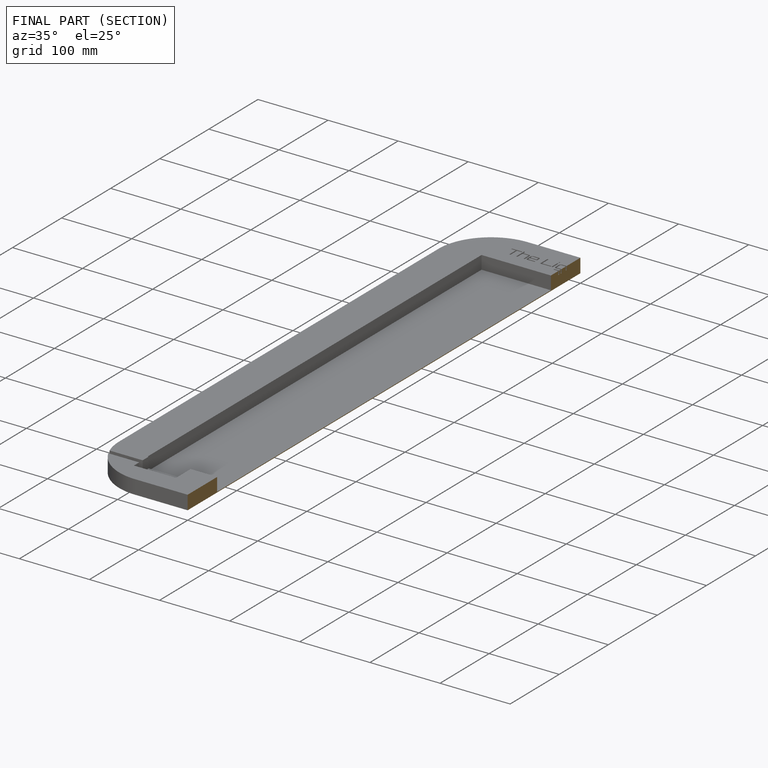
[diagram: finished part — half-section view (interior)]
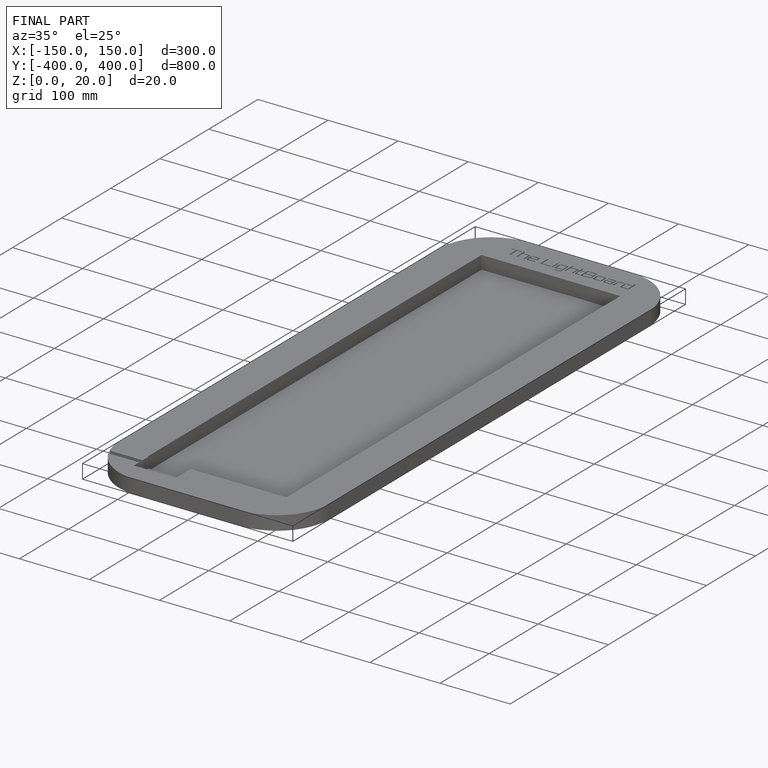
[diagram: finished part — iso view with bounding-box wireframe]
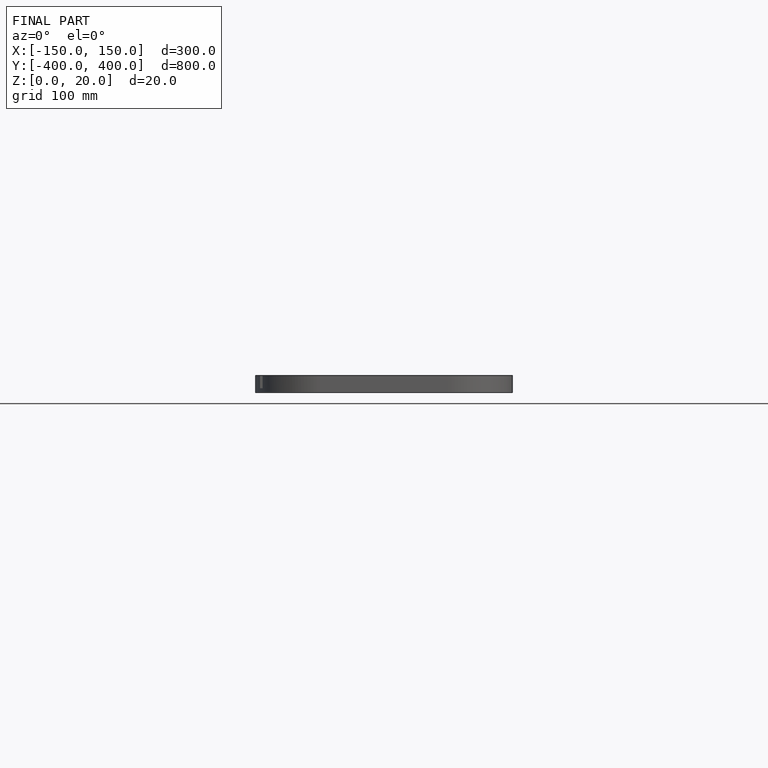
[diagram: finished part — front view with bounding-box wireframe]
